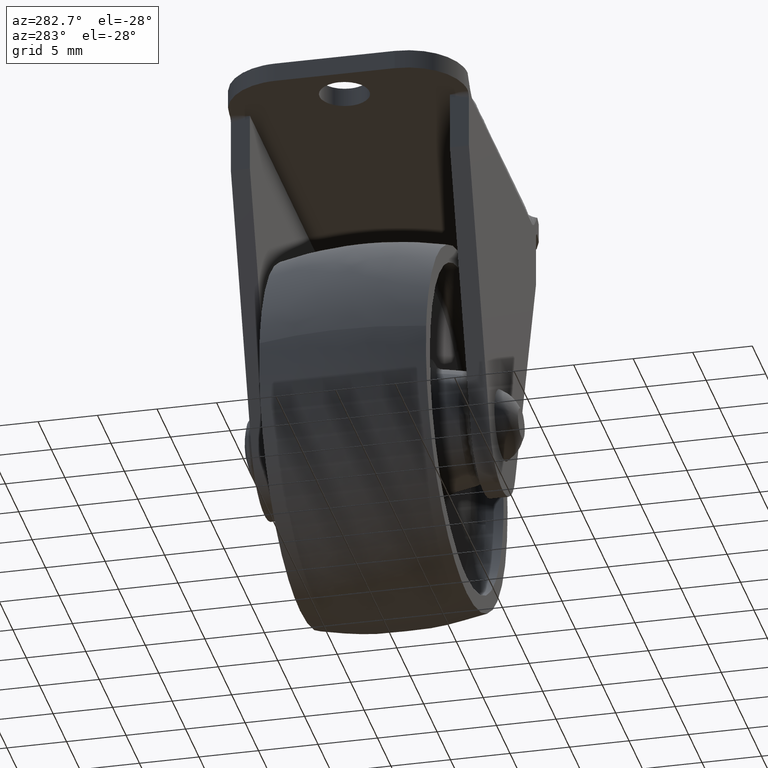
[diagram: clean part render]
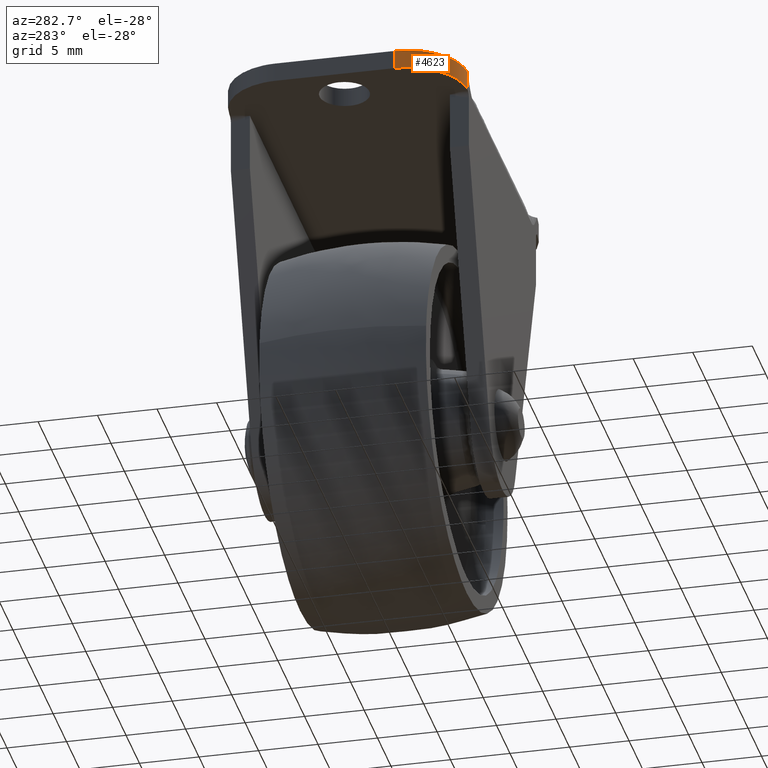
[diagram: same view with one face highlighted and labeled with its STEP entity id]
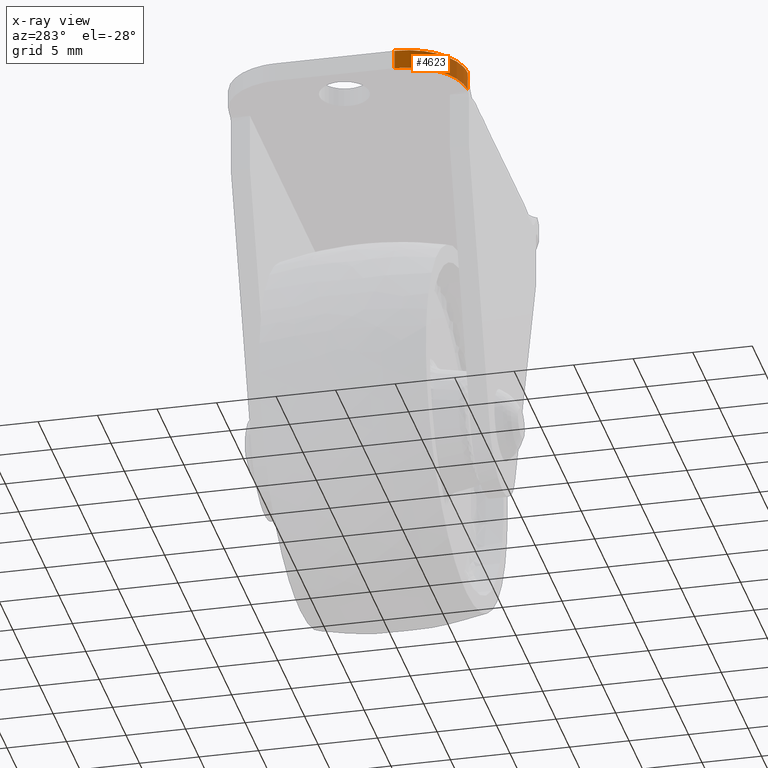
[diagram: x-ray of the same camera — body ghosted, the highlighted face saturated]
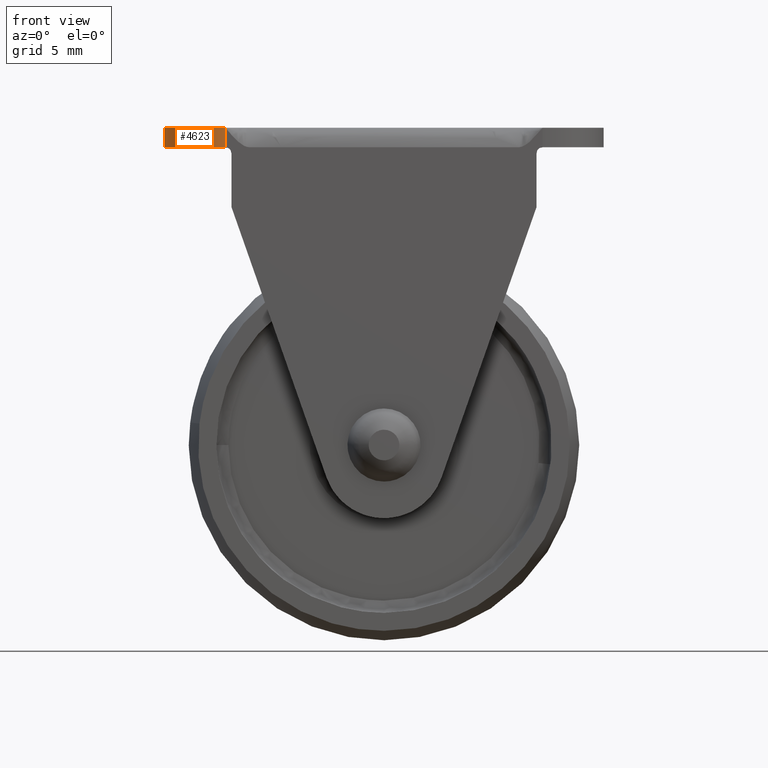
[diagram: same view with one face highlighted and labeled with its STEP entity id]
A machine part, auxiliary view. The second image highlights one B-rep face of the part: STEP entity #4623.
The next image is the same camera in x-ray: the body ghosted, the highlighted face saturated — about 0% of this face is hidden behind the body in this view.
A second angle (front view) of the same face is appended — the face is thin or edge-on in the first view.
In plain terms, the highlighted face is a freeform B-spline surface patch.
Its self-contained STEP definition (entity closure, byte-faithful):
#3221=CARTESIAN_POINT('',(-13.000002617993880,-9.999999999999400,26.0));
#3222=VERTEX_POINT('',#3221);
#3356=CARTESIAN_POINT('',(-13.000002617993880,-9.999999999999400,24.400000999999950));
#3357=VERTEX_POINT('',#3356);
#4274=CARTESIAN_POINT('',(-18.0,-5.000000000000091,26.0));
#4275=VERTEX_POINT('',#4274);
#4276=CARTESIAN_POINT('',(-18.0,-5.000000000000091,26.0));
#4277=CARTESIAN_POINT('',(-18.000000000000004,-9.999997382006894,25.999999999999993));
#4278=CARTESIAN_POINT('',(-13.000002617993880,-9.999999999999405,26.0));
#4286=(BOUNDED_CURVE()B_SPLINE_CURVE(2,(#4276,#4277,#4278),.UNSPECIFIED.,.F.,.U.)CURVE()GEOMETRIC_REPRESENTATION_ITEM()QUASI_UNIFORM_CURVE()RATIONAL_B_SPLINE_CURVE((1.0,0.707106966306646,1.0))REPRESENTATION_ITEM(''));
#4287=EDGE_CURVE('',#4275,#3222,#4286,.T.);
#4421=CARTESIAN_POINT('',(-18.0,-5.000000000000091,24.400000999999950));
#4422=VERTEX_POINT('',#4421);
#4423=CARTESIAN_POINT('',(-18.0,-5.000000000000091,24.400000999999950));
#4424=CARTESIAN_POINT('',(-18.000000000000004,-9.999997382006894,24.400000999999946));
#4425=CARTESIAN_POINT('',(-13.000002617993880,-9.999999999999405,24.400000999999950));
#4433=(BOUNDED_CURVE()B_SPLINE_CURVE(2,(#4423,#4424,#4425),.UNSPECIFIED.,.F.,.U.)CURVE()GEOMETRIC_REPRESENTATION_ITEM()QUASI_UNIFORM_CURVE()RATIONAL_B_SPLINE_CURVE((1.0,0.707106966306646,1.0))REPRESENTATION_ITEM(''));
#4434=EDGE_CURVE('',#4422,#3357,#4433,.T.);
#4578=CARTESIAN_POINT('',(-13.000002617993880,-9.999999999999400,24.400000999999950));
#4579=CARTESIAN_POINT('',(-13.000002617993880,-9.999999999999400,26.0));
#4580=QUASI_UNIFORM_CURVE('',1,(#4578,#4579),.UNSPECIFIED.,.F.,.U.);
#4581=EDGE_CURVE('',#3357,#3222,#4580,.T.);
#4599=CARTESIAN_POINT('',(-12.869115258460630,-9.998286624877874,24.360001024999949));
#4600=CARTESIAN_POINT('',(-12.869115258460630,-9.998286624877874,26.040999974375008));
#4601=CARTESIAN_POINT('',(-18.374923846164293,-10.142461296730438,24.360001024999953));
#4602=CARTESIAN_POINT('',(-18.374923846164293,-10.142461296730438,26.040999974375001));
#4603=CARTESIAN_POINT('',(-17.987622406858502,-4.648399763079140,24.360001024999946));
#4604=CARTESIAN_POINT('',(-17.987622406858502,-4.648399763079140,26.040999974375001));
#4612=(BOUNDED_SURFACE()B_SPLINE_SURFACE(1,2,((#4599,#4601,#4603),(#4600,#4602,#4604)),.UNSPECIFIED.,.F.,.F.,.U.)B_SPLINE_SURFACE_WITH_KNOTS((2,2),(3,3),(0.0,1.0),(0.0,8.855711551068914),.UNSPECIFIED.)GEOMETRIC_REPRESENTATION_ITEM()RATIONAL_B_SPLINE_SURFACE(((1.0,0.670944229434663,0.996392636187006),(1.0,0.670944229434663,0.996392636187006)))REPRESENTATION_ITEM('')SURFACE());
#4613=ORIENTED_EDGE('',*,*,#4287,.F.);
#4614=CARTESIAN_POINT('',(-18.0,-5.000000000000091,24.400000999999950));
#4615=CARTESIAN_POINT('',(-18.0,-5.000000000000091,26.0));
#4616=QUASI_UNIFORM_CURVE('',1,(#4614,#4615),.UNSPECIFIED.,.F.,.U.);
#4617=EDGE_CURVE('',#4422,#4275,#4616,.T.);
#4618=ORIENTED_EDGE('',*,*,#4617,.F.);
#4619=ORIENTED_EDGE('',*,*,#4434,.T.);
#4620=ORIENTED_EDGE('',*,*,#4581,.T.);
#4621=EDGE_LOOP('',(#4613,#4618,#4619,#4620));
#4622=FACE_OUTER_BOUND('',#4621,.T.);
#4623=ADVANCED_FACE('',(#4622),#4612,.T.);